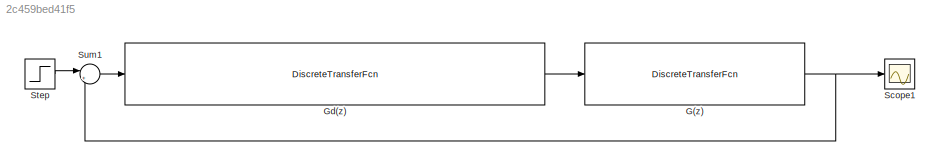
MODEL slx_2c459bed41f5
KIND model
CONFIG AbsTol = auto
CONFIG EnableMultiTasking = off
CONFIG FixedStep = auto
CONFIG MaxStep = auto
CONFIG MinStep = auto
CONFIG RelTol = 1e-3
CONFIG SampleTimeConstraint = Unconstrained
CONFIG SolverName = VariableStepAuto
CONFIG StartTime = 0.0
CONFIG StopTime = 10.0
BLOCK [DiscreteTransferFcn] G(z)
  Denominator = [1 -2.779 2.557 -0.7786]
  InputPortMap = u0
  Numerator = [0.0002481 0.00032 0]
  Ports = [1, 1]
BLOCK [DiscreteTransferFcn] Gd(z)
  Denominator = [0.0002481 4.154e-05 -0.0005482 -2.443e-05 0.000283 0]
  InputPortMap = u0
  Numerator = [1.122 -2.357 -0.1314 3.532 -2.855 0.6886]
  Ports = [1, 1]
BLOCK [Scope] Scope1
  Floating = off
  NumInputPorts = 1
  Ports = [1]
  ScopeSpecificationString = Simulink.scopes.TimeScopeBlockCfg('CurrentConfiguration', extmgr.ConfigurationSet(extmgr.Configuration('Core','General UI',true),extmgr.Configuration('Core','Source UI',true),extmgr.Configuration('Sources','WiredSimulink',true,'DataLoggingSaveFormat','Structure','DataLoggingMaxPoints','250','SampleTime','0.02','DataLoggingLimitDataPoints',true,'DataLoggingDecimation','1','DataLoggingVariableName',...<+2059ch>
BLOCK [Step] Step
  SampleTime = 0
BLOCK [Sum] Sum1
  Inputs = |+-
  Ports = [2, 1]
NET G(z):1 -> Scope1:1, Sum1:2
LINE Gd(z):1 -> G(z):1
LINE Step:1 -> Sum1:1
LINE Sum1:1 -> Gd(z):1
note: NET lines group one-source signal fan-out (src -> all destinations, sorted); 1:1 wires keep LINE
